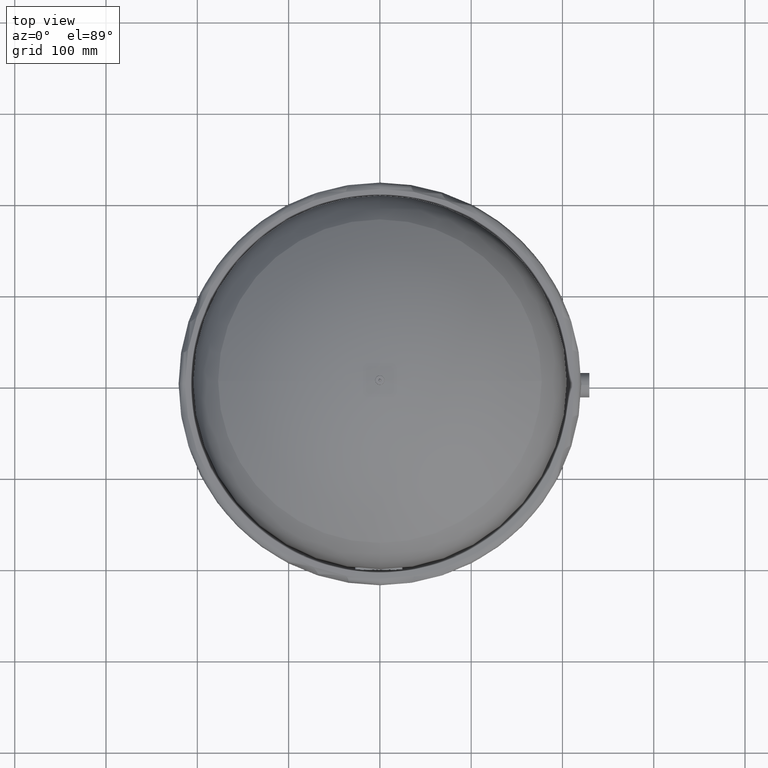
[diagram: clean part render]
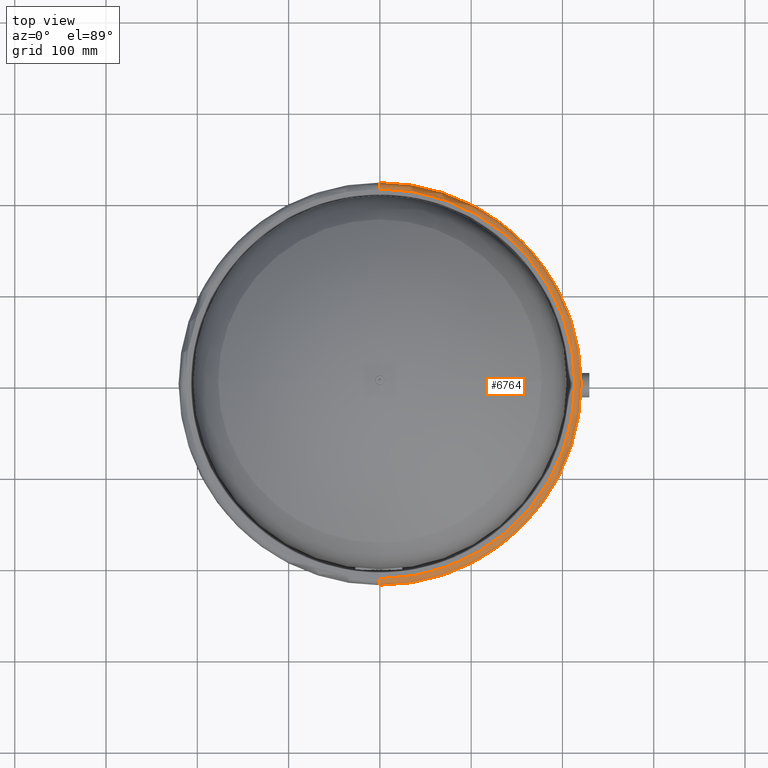
[diagram: same view with one face highlighted and labeled with its STEP entity id]
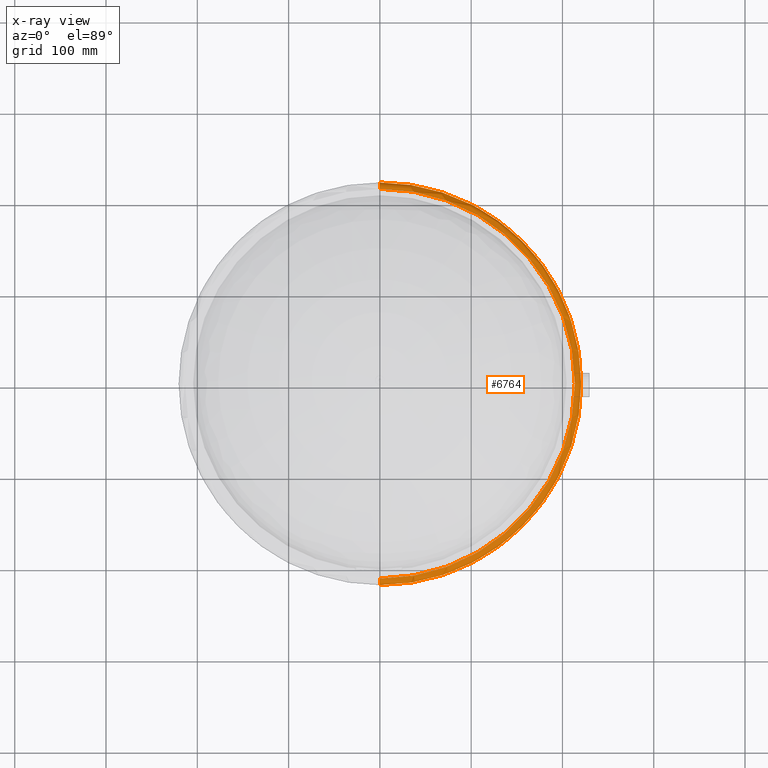
[diagram: x-ray of the same camera — body ghosted, the highlighted face saturated]
A machine part, top view. The second image highlights one B-rep face of the part: STEP entity #6764.
The next image is the same camera in x-ray: the body ghosted, the highlighted face saturated — about 0% of this face is hidden behind the body in this view.
In plain terms, the highlighted toroidal blend (fillet) surface has major radius 213.5 mm and minor (blend) radius 7 mm.
Its self-contained STEP definition (entity closure, byte-faithful):
#6640=CARTESIAN_POINT('',(220.49999999999997,-2.723219E-014,255.25));
#6641=VERTEX_POINT('',#6640);
#6648=CARTESIAN_POINT('',(-2.700257E-014,-220.49999999999997,255.25));
#6649=VERTEX_POINT('',#6648);
#6650=CARTESIAN_POINT('',(0.0,-2.296213E-016,255.25));
#6651=DIRECTION('',(0.0,0.0,-1.0));
#6652=DIRECTION('',(-1.0,0.0,0.0));
#6653=AXIS2_PLACEMENT_3D('',#6650,#6651,#6652);
#6654=CIRCLE('',#6653,220.49999999999997);
#6655=EDGE_CURVE('',#6641,#6649,#6654,.T.);
#6672=CARTESIAN_POINT('',(0.0,220.49999999999997,255.25));
#6673=VERTEX_POINT('',#6672);
#6674=CARTESIAN_POINT('',(0.0,213.5,262.25));
#6675=VERTEX_POINT('',#6674);
#6676=CARTESIAN_POINT('',(0.0,213.5,255.25));
#6677=DIRECTION('',(1.0,0.0,0.0));
#6678=DIRECTION('',(0.0,1.0,0.0));
#6679=AXIS2_PLACEMENT_3D('',#6676,#6677,#6678);
#6680=CIRCLE('',#6679,7.000000000000001);
#6681=EDGE_CURVE('',#6673,#6675,#6680,.T.);
#6691=CARTESIAN_POINT('',(-2.614535E-014,-213.5,262.25));
#6692=VERTEX_POINT('',#6691);
#6693=CARTESIAN_POINT('',(-2.614535E-014,-213.5,255.25));
#6694=DIRECTION('',(-1.0,0.0,0.0));
#6695=DIRECTION('',(0.0,-1.0,0.0));
#6696=AXIS2_PLACEMENT_3D('',#6693,#6694,#6695);
#6697=CIRCLE('',#6696,7.000000000000001);
#6698=EDGE_CURVE('',#6649,#6692,#6697,.T.);
#6726=CARTESIAN_POINT('',(0.0,-6.582477E-016,262.25));
#6727=DIRECTION('',(0.0,0.0,-1.0));
#6728=DIRECTION('',(-1.0,0.0,0.0));
#6729=AXIS2_PLACEMENT_3D('',#6726,#6727,#6728);
#6730=CIRCLE('',#6729,213.5);
#6731=EDGE_CURVE('',#6675,#6692,#6730,.T.);
#6746=CARTESIAN_POINT('',(0.0,-2.296213E-016,255.25));
#6747=DIRECTION('',(0.0,6.123234E-017,-1.0));
#6748=DIRECTION('',(0.0,1.0,0.0));
#6749=AXIS2_PLACEMENT_3D('',#6746,#6747,#6748);
#6750=TOROIDAL_SURFACE('',#6749,213.5,7.000000000000001);
#6751=ORIENTED_EDGE('',*,*,#6681,.T.);
#6752=ORIENTED_EDGE('',*,*,#6731,.T.);
#6753=ORIENTED_EDGE('',*,*,#6698,.F.);
#6754=ORIENTED_EDGE('',*,*,#6655,.F.);
#6755=CARTESIAN_POINT('',(0.0,-2.296213E-016,255.25));
#6756=DIRECTION('',(0.0,0.0,-1.0));
#6757=DIRECTION('',(-1.0,0.0,0.0));
#6758=AXIS2_PLACEMENT_3D('',#6755,#6756,#6757);
#6759=CIRCLE('',#6758,220.49999999999997);
#6760=EDGE_CURVE('',#6673,#6641,#6759,.T.);
#6761=ORIENTED_EDGE('',*,*,#6760,.F.);
#6762=EDGE_LOOP('',(#6751,#6752,#6753,#6754,#6761));
#6763=FACE_OUTER_BOUND('',#6762,.T.);
#6764=ADVANCED_FACE('',(#6763),#6750,.T.);